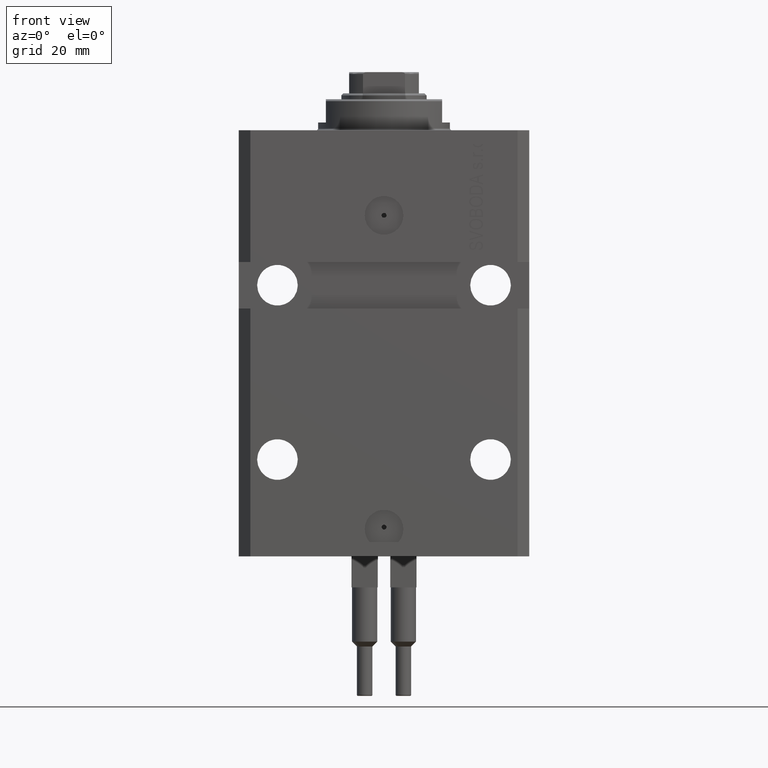
[diagram: clean part render]
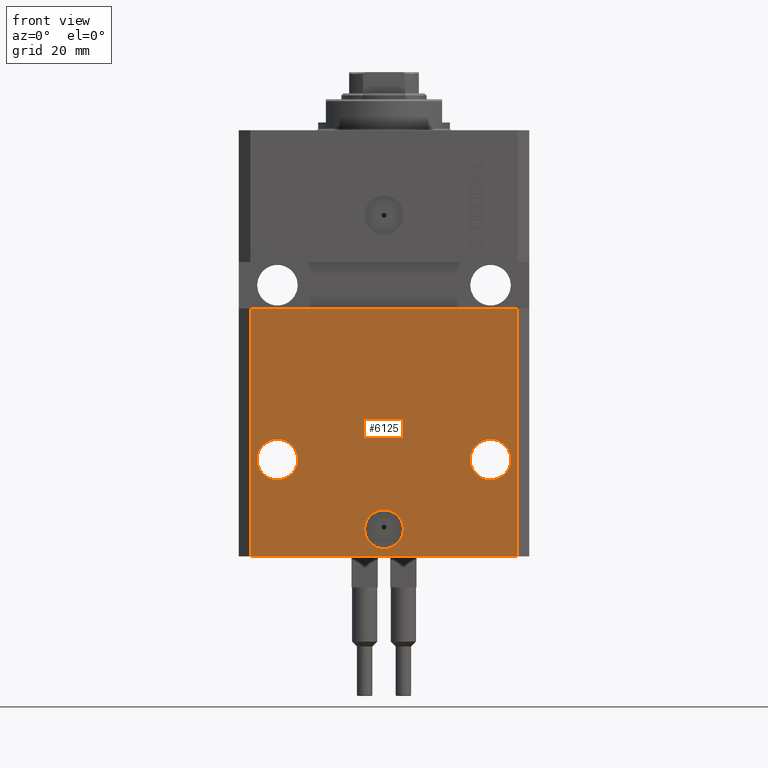
[diagram: same view with one face highlighted and labeled with its STEP entity id]
A machine part, front view. The second image highlights one B-rep face of the part: STEP entity #6125.
In plain terms, the highlighted planar face has unit normal (0, -1, 0).
Its self-contained STEP definition (entity closure, byte-faithful):
#465 = DIRECTION ( 'NONE',  ( 0.000000000000000000, -1.000000000000000000, 0.000000000000000000 ) ) ;
#550 = CARTESIAN_POINT ( 'NONE',  ( 32.75000000000000711, -27.49999999999999289, -84.99999999999998579 ) ) ;
#1816 = ORIENTED_EDGE ( 'NONE', *, *, #8427, .T. ) ;
#1929 = EDGE_CURVE ( 'NONE', #17333, #43928, #17556, .T. ) ;
#2028 = DIRECTION ( 'NONE',  ( 1.000000000000000000, 0.000000000000000000, 0.000000000000000000 ) ) ;
#3837 = EDGE_LOOP ( 'NONE', ( #13466, #48140 ) ) ;
#3949 = VERTEX_POINT ( 'NONE', #31606 ) ;
#4609 = CIRCLE ( 'NONE', #47376, 5.249999999999994671 ) ;
#4757 = EDGE_CURVE ( 'NONE', #43928, #17333, #27697, .T. ) ;
#4861 = CARTESIAN_POINT ( 'NONE',  ( -34.49999999999998579, -27.49999999999999645, -110.0000000000000000 ) ) ;
#5482 = CARTESIAN_POINT ( 'NONE',  ( 0.000000000000000000, -27.49999999999999645, -103.0000000000000000 ) ) ;
#6068 = CARTESIAN_POINT ( 'NONE',  ( -27.50000000000001421, -27.50000000000000000, -84.99999999999998579 ) ) ;
#6125 = ADVANCED_FACE ( 'NONE', ( #10722, #32894, #36793, #7315 ), #47728, .T. ) ;
#6663 = CARTESIAN_POINT ( 'NONE',  ( 34.49999999999999289, -27.49999999999999645, -110.0000000000000000 ) ) ;
#6694 = AXIS2_PLACEMENT_3D ( 'NONE', #5482, #16669, #9134 ) ;
#7264 = DIRECTION ( 'NONE',  ( 1.000000000000000000, 9.251858538542972814E-17, -9.251858538542972814E-17 ) ) ;
#7315 = FACE_OUTER_BOUND ( 'NONE', #9455, .T. ) ;
#8427 = EDGE_CURVE ( 'NONE', #36038, #19656, #46354, .T. ) ;
#9134 = DIRECTION ( 'NONE',  ( 1.000000000000000000, 0.000000000000000000, 0.000000000000000000 ) ) ;
#9455 = EDGE_LOOP ( 'NONE', ( #20613, #9970, #1816, #16025 ) ) ;
#9970 = ORIENTED_EDGE ( 'NONE', *, *, #21369, .F. ) ;
#10317 = LINE ( 'NONE', #32733, #29431 ) ;
#10722 = FACE_BOUND ( 'NONE', #34798, .T. ) ;
#12002 = DIRECTION ( 'NONE',  ( 0.000000000000000000, 0.000000000000000000, 1.000000000000000000 ) ) ;
#12302 = DIRECTION ( 'NONE',  ( -1.000000000000000000, 0.000000000000000000, 0.000000000000000000 ) ) ;
#13099 = ORIENTED_EDGE ( 'NONE', *, *, #4757, .F. ) ;
#13448 = DIRECTION ( 'NONE',  ( 1.000000000000000000, 0.000000000000000000, 0.000000000000000000 ) ) ;
#13466 = ORIENTED_EDGE ( 'NONE', *, *, #34348, .F. ) ;
#13603 = CARTESIAN_POINT ( 'NONE',  ( 27.50000000000001421, -27.49999999999999289, -84.99999999999998579 ) ) ;
#14019 = CIRCLE ( 'NONE', #24936, 5.249999999999994671 ) ;
#14460 = AXIS2_PLACEMENT_3D ( 'NONE', #38379, #45663, #12302 ) ;
#15783 = EDGE_CURVE ( 'NONE', #37512, #44112, #14019, .T. ) ;
#16025 = ORIENTED_EDGE ( 'NONE', *, *, #32918, .T. ) ;
#16669 = DIRECTION ( 'NONE',  ( 1.176083712526788232E-16, -1.000000000000000000, 0.000000000000000000 ) ) ;
#17240 = VECTOR ( 'NONE', #47351, 1000.000000000000000 ) ;
#17333 = VERTEX_POINT ( 'NONE', #18442 ) ;
#17556 = CIRCLE ( 'NONE', #6694, 5.000000000000006217 ) ;
#18442 = CARTESIAN_POINT ( 'NONE',  ( -5.000000000000006217, -27.49999999999999645, -103.0000000000000000 ) ) ;
#19572 = DIRECTION ( 'NONE',  ( 1.000000000000000000, 0.000000000000000000, 0.000000000000000000 ) ) ;
#19656 = VERTEX_POINT ( 'NONE', #6663 ) ;
#19800 = CARTESIAN_POINT ( 'NONE',  ( 27.50000000000001421, -27.49999999999999289, -84.99999999999998579 ) ) ;
#19947 = AXIS2_PLACEMENT_3D ( 'NONE', #33133, #465, #37027 ) ;
#20613 = ORIENTED_EDGE ( 'NONE', *, *, #22881, .F. ) ;
#20833 = CARTESIAN_POINT ( 'NONE',  ( -22.25000000000002132, -27.50000000000000000, -84.99999999999998579 ) ) ;
#21018 = CARTESIAN_POINT ( 'NONE',  ( -34.49999999999998579, -27.49999999999999645, -110.0000000000000000 ) ) ;
#21369 = EDGE_CURVE ( 'NONE', #36038, #23859, #35215, .T. ) ;
#21437 = CIRCLE ( 'NONE', #14460, 5.249999999999994671 ) ;
#22224 = ORIENTED_EDGE ( 'NONE', *, *, #1929, .F. ) ;
#22526 = CARTESIAN_POINT ( 'NONE',  ( 34.49999999999999289, -27.49999999999999289, -46.00000000000000711 ) ) ;
#22881 = EDGE_CURVE ( 'NONE', #23859, #29921, #25762, .T. ) ;
#23043 = VERTEX_POINT ( 'NONE', #20833 ) ;
#23449 = DIRECTION ( 'NONE',  ( 1.176083712526788232E-16, -1.000000000000000000, 0.000000000000000000 ) ) ;
#23859 = VERTEX_POINT ( 'NONE', #47231 ) ;
#23909 = AXIS2_PLACEMENT_3D ( 'NONE', #25367, #39985, #13448 ) ;
#24802 = DIRECTION ( 'NONE',  ( 1.176083712526788232E-16, -1.000000000000000000, 0.000000000000000000 ) ) ;
#24936 = AXIS2_PLACEMENT_3D ( 'NONE', #19800, #23449, #19572 ) ;
#25367 = CARTESIAN_POINT ( 'NONE',  ( 0.000000000000000000, -27.49999999999999645, -103.0000000000000000 ) ) ;
#25762 = LINE ( 'NONE', #40622, #39853 ) ;
#26701 = EDGE_LOOP ( 'NONE', ( #47726, #40356 ) ) ;
#27697 = CIRCLE ( 'NONE', #23909, 5.000000000000006217 ) ;
#27773 = EDGE_CURVE ( 'NONE', #3949, #23043, #21437, .T. ) ;
#28470 = DIRECTION ( 'NONE',  ( -1.000000000000000000, 0.000000000000000000, 0.000000000000000000 ) ) ;
#29431 = VECTOR ( 'NONE', #12002, 1000.000000000000000 ) ;
#29921 = VERTEX_POINT ( 'NONE', #22526 ) ;
#31397 = CARTESIAN_POINT ( 'NONE',  ( 22.25000000000002132, -27.49999999999999289, -84.99999999999998579 ) ) ;
#31606 = CARTESIAN_POINT ( 'NONE',  ( -32.75000000000000711, -27.50000000000000000, -84.99999999999998579 ) ) ;
#31711 = VECTOR ( 'NONE', #2028, 1000.000000000000000 ) ;
#32043 = CARTESIAN_POINT ( 'NONE',  ( -34.49999999999998579, -27.49999999999999645, -110.0000000000000000 ) ) ;
#32134 = DIRECTION ( 'NONE',  ( 1.176083712526788232E-16, -1.000000000000000000, 0.000000000000000000 ) ) ;
#32733 = CARTESIAN_POINT ( 'NONE',  ( 34.49999999999999289, -27.49999999999999645, -110.0000000000000000 ) ) ;
#32894 = FACE_BOUND ( 'NONE', #3837, .T. ) ;
#32918 = EDGE_CURVE ( 'NONE', #19656, #29921, #10317, .T. ) ;
#33133 = CARTESIAN_POINT ( 'NONE',  ( -34.49999999999998579, -27.49999999999999645, -110.0000000000000000 ) ) ;
#34348 = EDGE_CURVE ( 'NONE', #44112, #37512, #4609, .T. ) ;
#34798 = EDGE_LOOP ( 'NONE', ( #13099, #22224 ) ) ;
#35215 = LINE ( 'NONE', #32043, #17240 ) ;
#36038 = VERTEX_POINT ( 'NONE', #4861 ) ;
#36793 = FACE_BOUND ( 'NONE', #26701, .T. ) ;
#37027 = DIRECTION ( 'NONE',  ( 0.000000000000000000, -0.000000000000000000, -1.000000000000000000 ) ) ;
#37512 = VERTEX_POINT ( 'NONE', #31397 ) ;
#38331 = AXIS2_PLACEMENT_3D ( 'NONE', #6068, #32134, #28470 ) ;
#38379 = CARTESIAN_POINT ( 'NONE',  ( -27.50000000000001421, -27.50000000000000000, -84.99999999999998579 ) ) ;
#39783 = CARTESIAN_POINT ( 'NONE',  ( 5.000000000000006217, -27.49999999999999645, -103.0000000000000000 ) ) ;
#39853 = VECTOR ( 'NONE', #7264, 1000.000000000000000 ) ;
#39985 = DIRECTION ( 'NONE',  ( 1.176083712526788232E-16, -1.000000000000000000, 0.000000000000000000 ) ) ;
#40356 = ORIENTED_EDGE ( 'NONE', *, *, #27773, .F. ) ;
#40622 = CARTESIAN_POINT ( 'NONE',  ( -37.50000000000000000, -27.50000000000000000, -46.00000000000000000 ) ) ;
#42203 = CIRCLE ( 'NONE', #38331, 5.249999999999994671 ) ;
#43312 = DIRECTION ( 'NONE',  ( 1.000000000000000000, 0.000000000000000000, 0.000000000000000000 ) ) ;
#43928 = VERTEX_POINT ( 'NONE', #39783 ) ;
#44112 = VERTEX_POINT ( 'NONE', #550 ) ;
#45262 = EDGE_CURVE ( 'NONE', #23043, #3949, #42203, .T. ) ;
#45663 = DIRECTION ( 'NONE',  ( 1.176083712526788232E-16, -1.000000000000000000, 0.000000000000000000 ) ) ;
#46354 = LINE ( 'NONE', #21018, #31711 ) ;
#47231 = CARTESIAN_POINT ( 'NONE',  ( -34.49999999999998579, -27.50000000000000000, -46.00000000000000000 ) ) ;
#47351 = DIRECTION ( 'NONE',  ( 0.000000000000000000, 0.000000000000000000, 1.000000000000000000 ) ) ;
#47376 = AXIS2_PLACEMENT_3D ( 'NONE', #13603, #24802, #43312 ) ;
#47726 = ORIENTED_EDGE ( 'NONE', *, *, #45262, .F. ) ;
#47728 = PLANE ( 'NONE',  #19947 ) ;
#48140 = ORIENTED_EDGE ( 'NONE', *, *, #15783, .F. ) ;